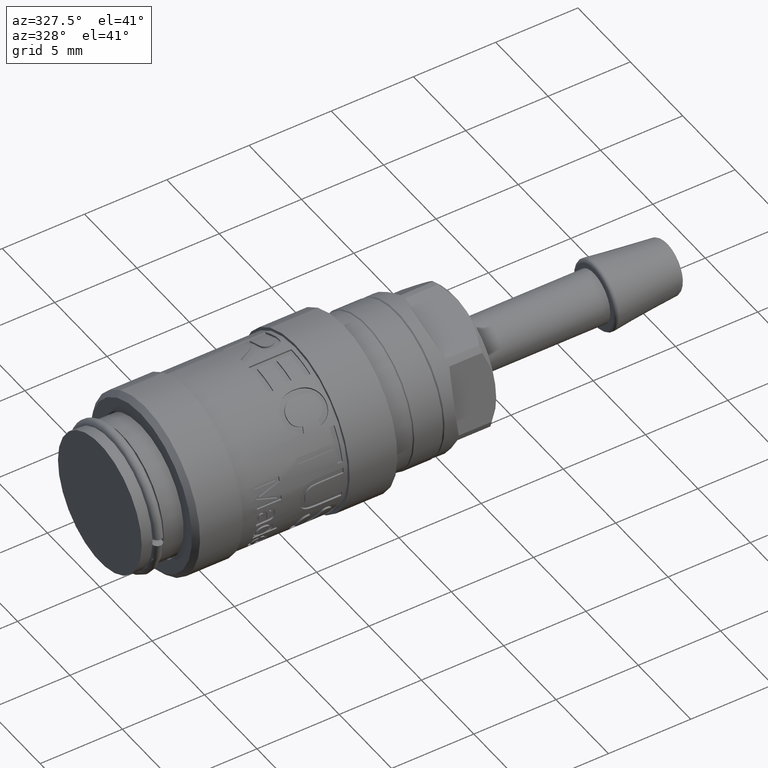
[diagram: clean part render]
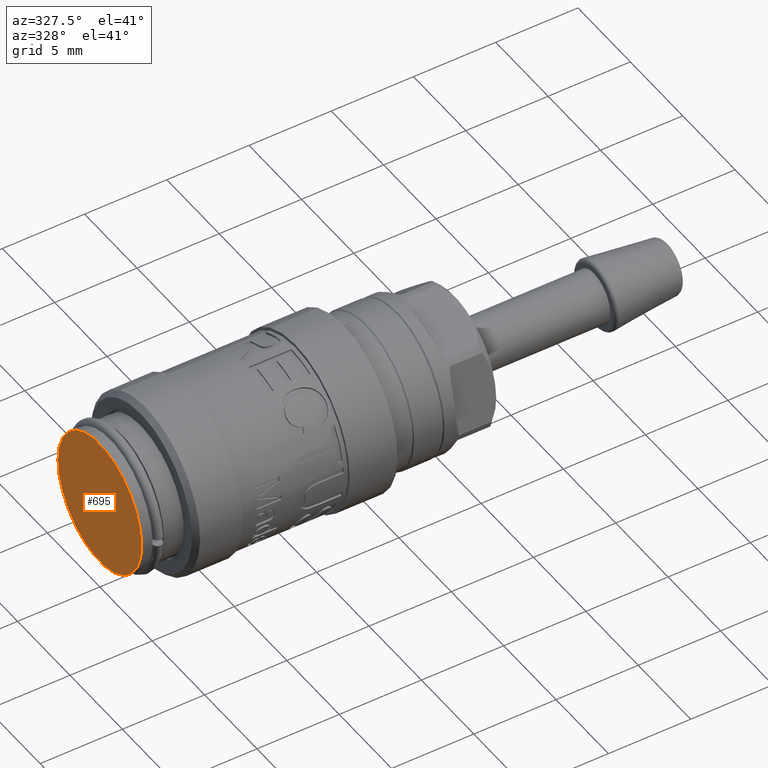
[diagram: same view with one face highlighted and labeled with its STEP entity id]
A machine part, auxiliary view. The second image highlights one B-rep face of the part: STEP entity #695.
In plain terms, the highlighted planar face has unit normal (-1, 0, 0).
Its self-contained STEP definition (entity closure, byte-faithful):
#675=CARTESIAN_POINT('',(-4.857226E-016,4.0,0.0));
#676=VERTEX_POINT('',#675);
#677=CARTESIAN_POINT('',(0.0,0.0,0.0));
#678=DIRECTION('',(1.0,0.0,0.0));
#679=DIRECTION('',(0.0,1.0,0.0));
#680=AXIS2_PLACEMENT_3D('',#677,#678,#679);
#681=CIRCLE('',#680,4.0);
#682=EDGE_CURVE('',#676,#676,#681,.T.);
#687=CARTESIAN_POINT('',(-2.428613E-016,3.525,0.0));
#688=DIRECTION('',(-1.0,0.0,0.0));
#689=DIRECTION('',(0.0,0.0,1.0));
#690=AXIS2_PLACEMENT_3D('',#687,#688,#689);
#691=PLANE('',#690);
#692=ORIENTED_EDGE('',*,*,#682,.F.);
#693=EDGE_LOOP('',(#692));
#694=FACE_OUTER_BOUND('',#693,.T.);
#695=ADVANCED_FACE('',(#694),#691,.T.);